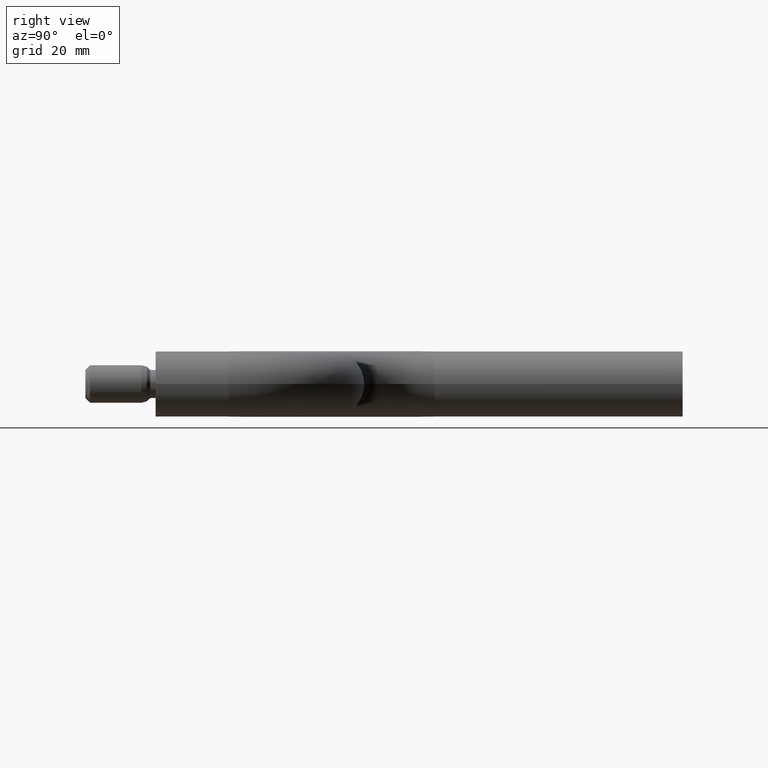
[diagram: clean part render]
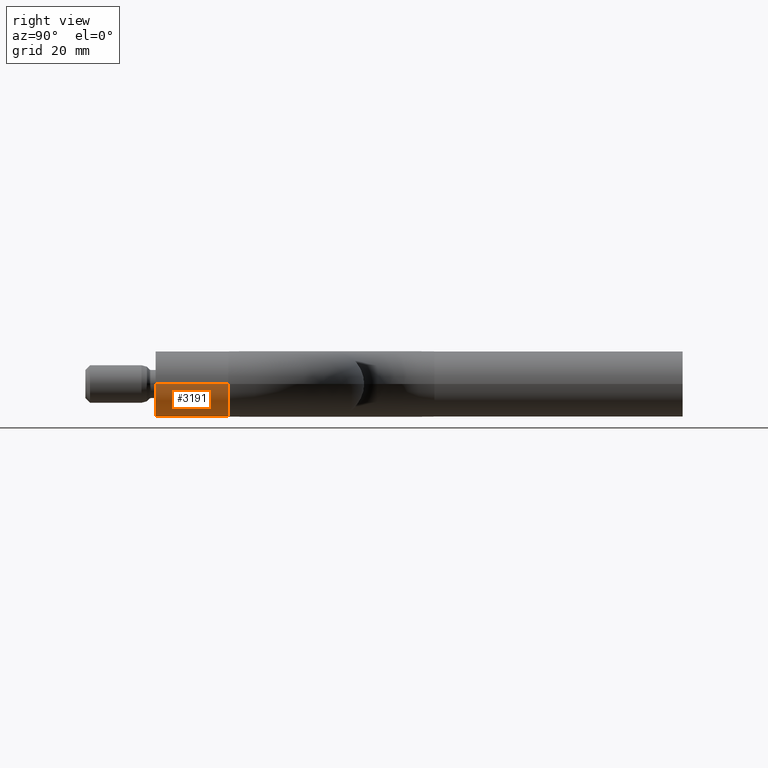
[diagram: same view with one face highlighted and labeled with its STEP entity id]
A machine part, right view. The second image highlights one B-rep face of the part: STEP entity #3191.
In plain terms, the highlighted cylindrical surface (edge-blend (fillet) strip) has radius 7 mm, axis along (0, -1, -0).
Its self-contained STEP definition (entity closure, byte-faithful):
#18 = ORIENTED_EDGE ( 'NONE', *, *, #5645, .F. ) ;
#117 = VERTEX_POINT ( 'NONE', #11253 ) ;
#1221 = AXIS2_PLACEMENT_3D ( 'NONE', #11087, #6003, #12124 ) ;
#1446 = DIRECTION ( 'NONE',  ( 4.132181859780452300E-018, -1.000000000000000000, -0.0000000000000000000 ) ) ;
#1501 = CARTESIAN_POINT ( 'NONE',  ( -6.404881882659701700E-017, 15.50000000000000000, 0.0000000000000000000 ) ) ;
#1634 = VECTOR ( 'NONE', #5198, 1000.000000000000000 ) ;
#1639 = CARTESIAN_POINT ( 'NONE',  ( -7.000000000000000000, 15.50000000000000000, 8.572527594031473200E-016 ) ) ;
#2886 = EDGE_CURVE ( 'NONE', #117, #8716, #11645, .T. ) ;
#2951 = CARTESIAN_POINT ( 'NONE',  ( -7.000000000000009800, 0.0000000000000000000, 8.572527594031483100E-016 ) ) ;
#3096 = EDGE_LOOP ( 'NONE', ( #7627, #18, #8035, #8292 ) ) ;
#3191 = ADVANCED_FACE ( 'NONE', ( #10018 ), #12445, .T. ) ;
#3852 = CARTESIAN_POINT ( 'NONE',  ( 7.000000000000009800, 1.192622389734054900E-015, 0.0000000000000000000 ) ) ;
#4279 = CIRCLE ( 'NONE', #1221, 7.000000000000000000 ) ;
#4405 = LINE ( 'NONE', #11573, #1634 ) ;
#5015 = CARTESIAN_POINT ( 'NONE',  ( -6.404881882659701700E-017, 15.50000000000000000, 0.0000000000000000000 ) ) ;
#5198 = DIRECTION ( 'NONE',  ( 4.132181859780452300E-018, -1.000000000000000000, -0.0000000000000000000 ) ) ;
#5645 = EDGE_CURVE ( 'NONE', #117, #11387, #6001, .T. ) ;
#5699 = AXIS2_PLACEMENT_3D ( 'NONE', #1501, #1446, #11766 ) ;
#6001 = CIRCLE ( 'NONE', #9793, 7.000000000000000000 ) ;
#6003 = DIRECTION ( 'NONE',  ( -8.851776813055513600E-017, 1.000000000000000000, -0.0000000000000000000 ) ) ;
#7617 = EDGE_CURVE ( 'NONE', #11387, #11047, #4405, .T. ) ;
#7627 = ORIENTED_EDGE ( 'NONE', *, *, #7617, .F. ) ;
#8035 = ORIENTED_EDGE ( 'NONE', *, *, #2886, .T. ) ;
#8292 = ORIENTED_EDGE ( 'NONE', *, *, #9124, .T. ) ;
#8697 = CARTESIAN_POINT ( 'NONE',  ( 7.000000000000000000, 15.50000000000000000, 0.0000000000000000000 ) ) ;
#8716 = VERTEX_POINT ( 'NONE', #3852 ) ;
#8894 = VECTOR ( 'NONE', #11829, 1000.000000000000000 ) ;
#9124 = EDGE_CURVE ( 'NONE', #8716, #11047, #4279, .T. ) ;
#9793 = AXIS2_PLACEMENT_3D ( 'NONE', #5015, #10020, #11057 ) ;
#10018 = FACE_OUTER_BOUND ( 'NONE', #3096, .T. ) ;
#10020 = DIRECTION ( 'NONE',  ( 0.0000000000000000000, 1.000000000000000000, 0.0000000000000000000 ) ) ;
#11047 = VERTEX_POINT ( 'NONE', #2951 ) ;
#11057 = DIRECTION ( 'NONE',  ( 0.0000000000000000000, 0.0000000000000000000, 1.000000000000000000 ) ) ;
#11087 = CARTESIAN_POINT ( 'NONE',  ( -5.416677968589100800E-032, 6.505213034913026600E-016, 0.0000000000000000000 ) ) ;
#11253 = CARTESIAN_POINT ( 'NONE',  ( 7.000000000000000000, 15.50000000000000000, 0.0000000000000000000 ) ) ;
#11387 = VERTEX_POINT ( 'NONE', #1639 ) ;
#11573 = CARTESIAN_POINT ( 'NONE',  ( -7.000000000000000000, 15.50000000000000000, 8.572527594031473200E-016 ) ) ;
#11645 = LINE ( 'NONE', #8697, #8894 ) ;
#11766 = DIRECTION ( 'NONE',  ( 1.000000000000000000, 0.0000000000000000000, 0.0000000000000000000 ) ) ;
#11829 = DIRECTION ( 'NONE',  ( 4.132181859780452300E-018, -1.000000000000000000, -0.0000000000000000000 ) ) ;
#12124 = DIRECTION ( 'NONE',  ( -1.000000000000000000, -8.851776813055513600E-017, 0.0000000000000000000 ) ) ;
#12445 = CYLINDRICAL_SURFACE ( 'NONE', #5699, 7.000000000000000000 ) ;